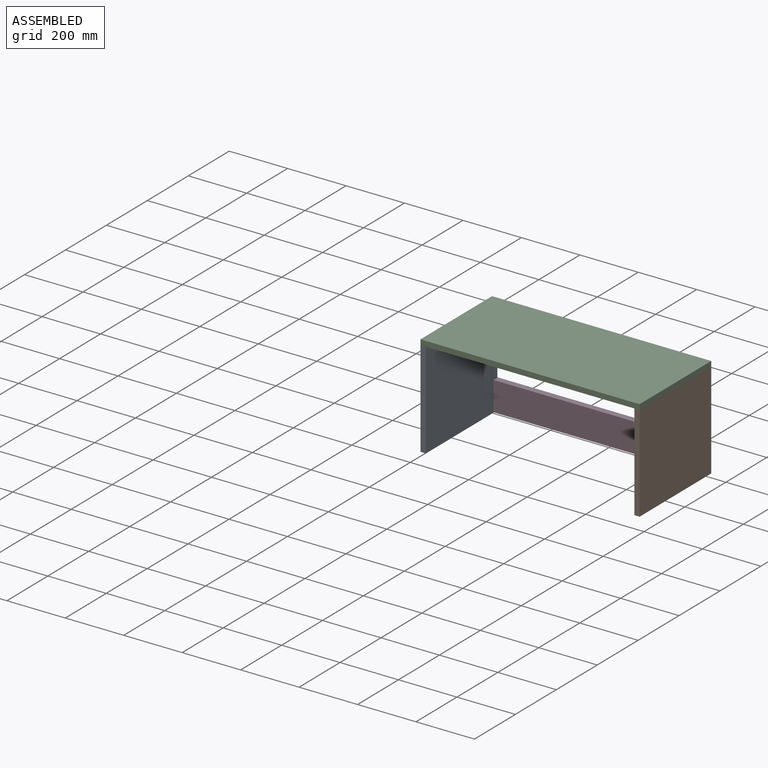
[diagram: assembled view]
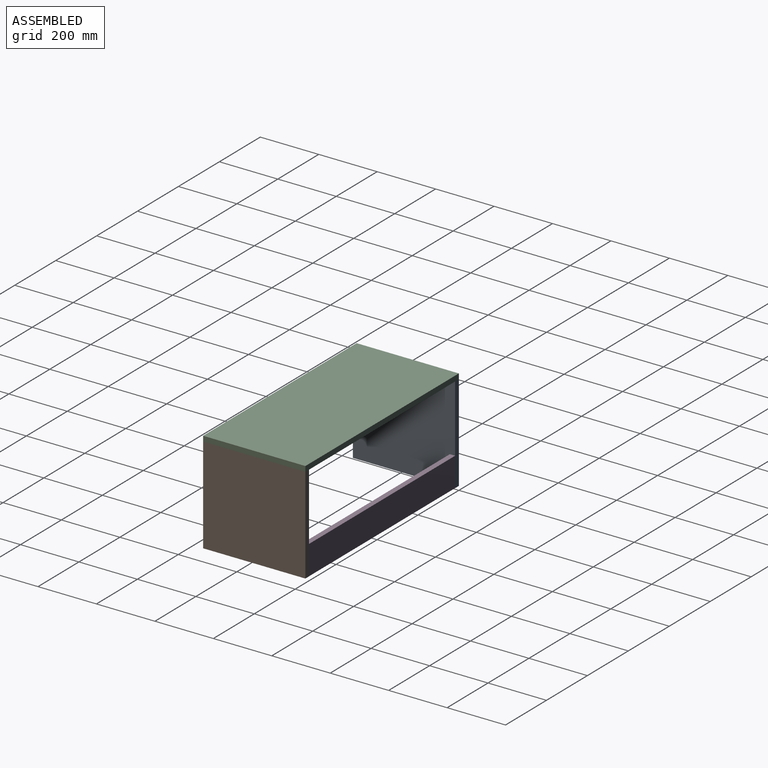
[diagram: assembled view, second angle]
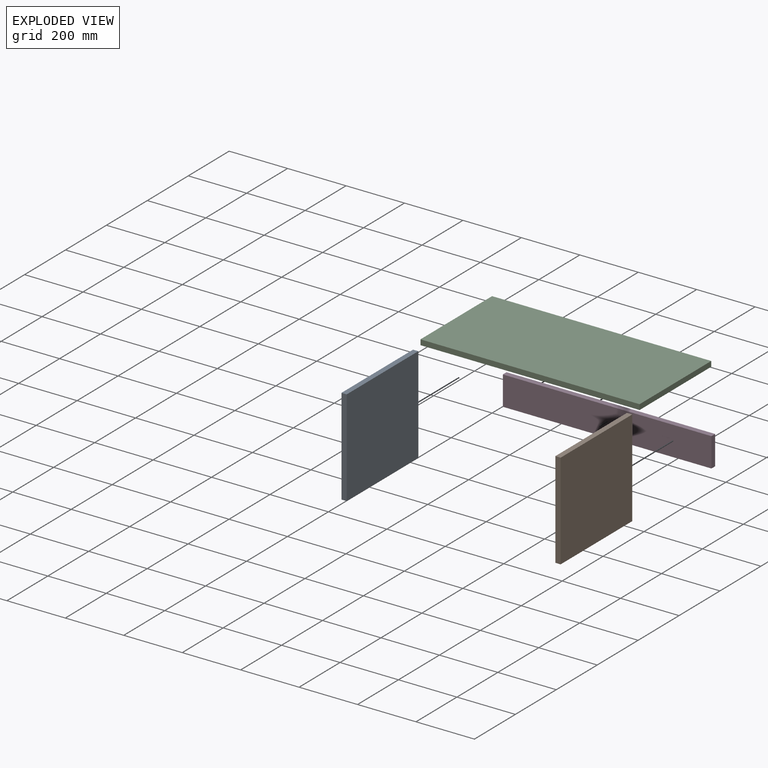
[diagram: exploded view]
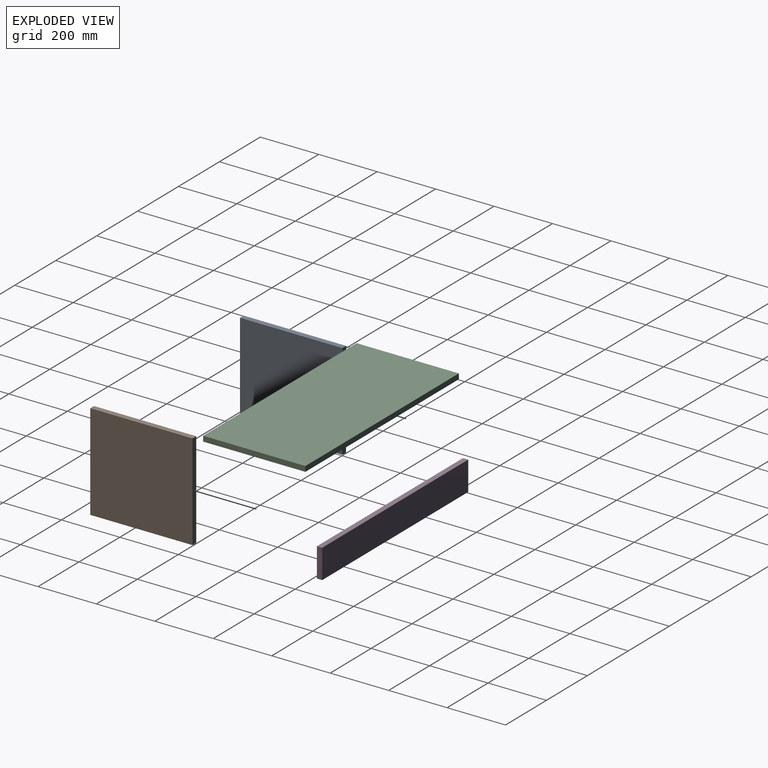
[diagram: exploded view, second angle]
ASSEMBLY  parts=4 mates=6
PART A: 6 faces, bbox 18x350x330 mm
  f0: plane 350x18mm, normal (0,0,1), area 6300mm2, adj f1,f3,f4,f5
  f1: plane 330x18mm, normal (0,-1,0), area 5940mm2, adj f0,f2,f4,f5
  f2: plane 350x18mm, normal (0,0,-1), area 6300mm2, adj f1,f3,f4,f5
  f3: plane 330x18mm, normal (0,1,0), area 5940mm2, adj f0,f2,f4,f5
  f4: plane 350x330mm, normal (1,0,0), area 115500mm2, adj f0,f1,f2,f3
  f5: plane 350x330mm, normal (-1,0,0), area 115500mm2, adj f0,f1,f2,f3
PART B: same geometry as A
PART C: 6 faces, bbox 750x350x18 mm
  f0: plane 750x18mm, normal (0,1,0), area 13500mm2, adj f1,f3,f4,f5
  f1: plane 350x18mm, normal (-1,0,0), area 6300mm2, adj f0,f2,f4,f5
  f2: plane 750x18mm, normal (0,-1,0), area 13500mm2, adj f1,f3,f4,f5
  f3: plane 350x18mm, normal (1,0,0), area 6300mm2, adj f0,f2,f4,f5
  f4: plane 750x350mm, normal (0,0,1), area 262500mm2, adj f0,f1,f2,f3
  f5: plane 750x350mm, normal (0,0,-1), area 262500mm2, adj f0,f1,f2,f3
PART D: 6 faces, bbox 714x18x100 mm
  f0: plane 714x18mm, normal (0,0,1), area 12852mm2, adj f1,f3,f4,f5
  f1: plane 100x18mm, normal (-1,0,0), area 1800mm2, adj f0,f2,f4,f5
  f2: plane 714x18mm, normal (0,0,-1), area 12852mm2, adj f1,f3,f4,f5
  f3: plane 100x18mm, normal (1,0,0), area 1800mm2, adj f0,f2,f4,f5
  f4: plane 714x100mm, normal (0,-1,0), area 71400mm2, adj f0,f1,f2,f3
  f5: plane 714x100mm, normal (0,1,0), area 71400mm2, adj f0,f1,f2,f3
PLACE A t=(0,-183.69,133.94)mm
PLACE B t=(732,-183.69,133.94)mm
PLACE C t=(299.48,-175.1,330)mm
PLACE D t=(291.4,0,87.09)mm
MATE planar D.f3 <-> B.f5  axis (1,0,0) through (732,-9,50.28)mm
MATE fastened A.f1 <-> C.f2  axis (0,-1,0) through (0,-350,330)mm
MATE planar D.f5 <-> A.f3  axis (0,1,0) through (375,0,50.28)mm
MATE fastened B.f1 <-> C.f2  axis (0,-1,0) through (750,-350,330)mm
MATE planar B.f4 <-> C.f3  axis (1,0,0) through (750,-175,165)mm
MATE planar A.f5 <-> C.f1  axis (-1,0,0) through (0,-175,165)mm
